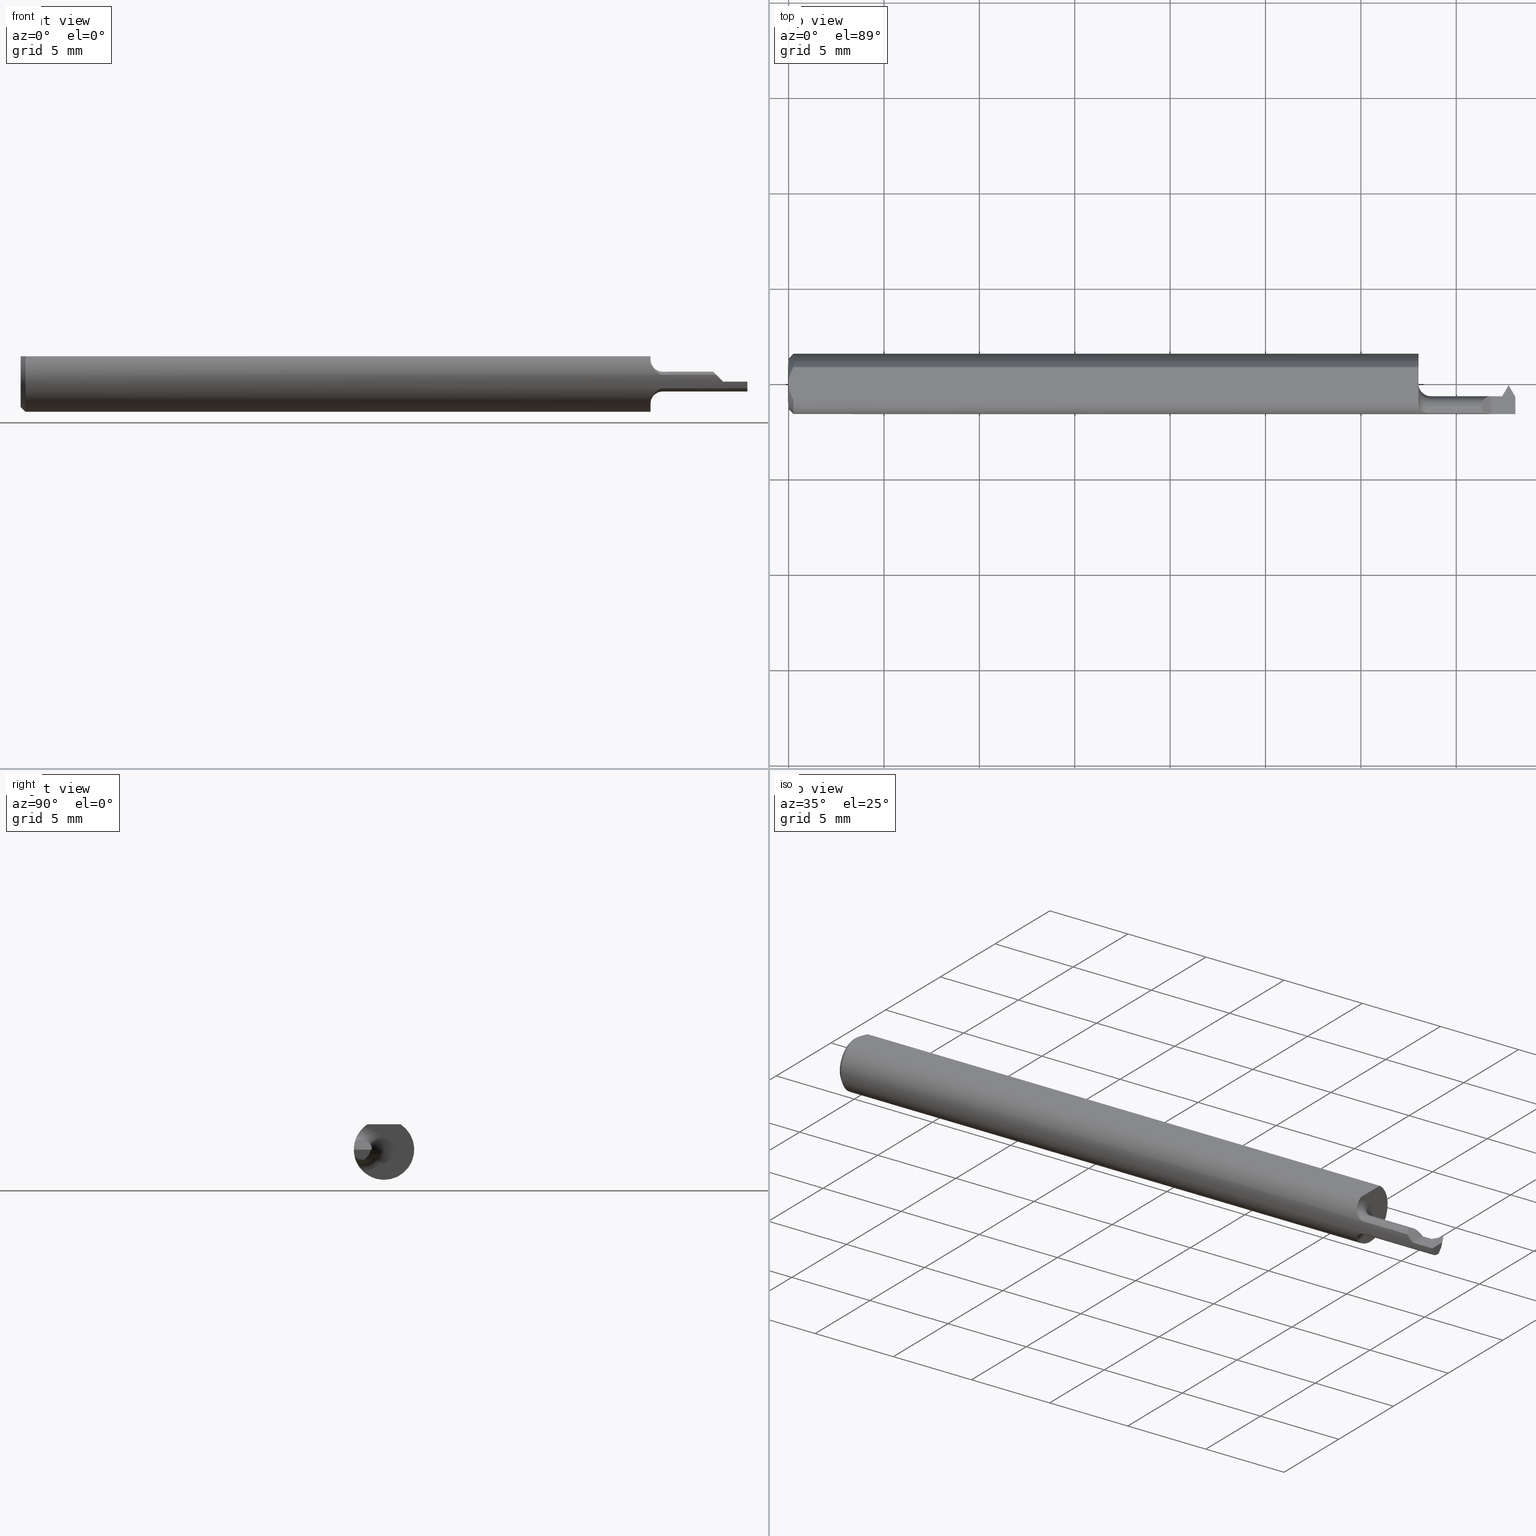
[diagram: canonical four-view strip — front | top / right | iso, engineering-drawing reading convention]
A machine part, canonical four-view strip (front | top / right | iso — engineering-drawing reading convention). The complete STEP part file that produces these views, byte-faithful:
ISO-10303-21;
HEADER;
FILE_DESCRIPTION (( 'STEP AP203' ),
    '1' );
FILE_NAME ('230019-TT060150.STEP',
    '2025-04-25T21:47:16',
    ( '' ),
    ( '' ),
    'SwSTEP 2.0',
    'SolidWorks 2024',
    '' );
FILE_SCHEMA (( 'CONFIG_CONTROL_DESIGN' ));
ENDSEC;

DATA;
#1 = DIRECTION ( 'NONE',  ( -1.000000000000000000, -0.000000000000000000, -0.000000000000000000 ) ) ;
#2 = EDGE_CURVE ( 'NONE', #551, #29, #622, .T. ) ;
#3 = ORIENTED_EDGE ( 'NONE', *, *, #259, .F. ) ;
#4 = CARTESIAN_POINT ( 'NONE',  ( -8.573957617566337510E-16, 0.005954997531773999035, 0.05234999999999997294 ) ) ;
#5 = AXIS2_PLACEMENT_3D ( 'NONE', #355, #72, #21 ) ;
#6 = FACE_OUTER_BOUND ( 'NONE', #283, .T. ) ;
#7 = VERTEX_POINT ( 'NONE', #149 ) ;
#8 = CARTESIAN_POINT ( 'NONE',  ( 1.500000000000000222, -0.2500000000000000555, 0.000000000000000000 ) ) ;
#9 = LINE ( 'NONE', #332, #424 ) ;
#10 = ORIENTED_EDGE ( 'NONE', *, *, #399, .T. ) ;
#11 = DATE_AND_TIME ( #471, #78 ) ;
#12 = LINE ( 'NONE', #527, #108 ) ;
#13 = ORIENTED_EDGE ( 'NONE', *, *, #215, .F. ) ;
#14 = B_SPLINE_CURVE_WITH_KNOTS ( 'NONE', 3,
 ( #517, #572, #69, #290, #482, #100, #709, #213 ),
 .UNSPECIFIED., .F., .F.,
 ( 4, 2, 2, 4 ),
 ( 4.183662842068042959E-06, 0.0006133011813381126186, 0.0009178599405861294185, 0.001222418699834146218 ),
 .UNSPECIFIED. ) ;
#15 = APPLICATION_PROTOCOL_DEFINITION ( 'international standard', 'config_control_design', 1994, #351 ) ;
#16 = CARTESIAN_POINT ( 'NONE',  ( 0.000000000000000000, 0.000000000000000000, 0.000000000000000000 ) ) ;
#17 = VECTOR ( 'NONE', #316, 39.37007874015748143 ) ;
#18 = VECTOR ( 'NONE', #162, 39.37007874015748854 ) ;
#19 = ORIENTED_EDGE ( 'NONE', *, *, #520, .T. ) ;
#20 = PERSON_AND_ORGANIZATION_ROLE ( 'design_supplier' ) ;
#21 = DIRECTION ( 'NONE',  ( 0.4999999999999948375, -0.8660254037844414832, 0.000000000000000000 ) ) ;
#22 = EDGE_LOOP ( 'NONE', ( #686, #450, #477, #185 ) ) ;
#23 = CC_DESIGN_DATE_AND_TIME_ASSIGNMENT ( #127, #301, ( #658 ) ) ;
#24 = EDGE_CURVE ( 'NONE', #7, #266, #655, .T. ) ;
#25 = DIRECTION ( 'NONE',  ( -1.000000000000000000, 0.000000000000000000, -0.000000000000000000 ) ) ;
#26 = ORIENTED_EDGE ( 'NONE', *, *, #627, .F. ) ;
#27 = COORDINATED_UNIVERSAL_TIME_OFFSET ( 8, 0, .BEHIND. ) ;
#28 = CARTESIAN_POINT ( 'NONE',  ( 1.470951421547187499, -0.02534999999999999060, 0.000000000000000000 ) ) ;
#29 = VERTEX_POINT ( 'NONE', #436 ) ;
#30 = CARTESIAN_POINT ( 'NONE',  ( 1.671951421547187788, -0.04584999999999988390, -0.02050000000000002168 ) ) ;
#31 = DIRECTION ( 'NONE',  ( 1.000000000000000000, -0.000000000000000000, -0.000000000000000000 ) ) ;
#32 = EDGE_CURVE ( 'NONE', #168, #276, #265, .T. ) ;
#33 = EDGE_CURVE ( 'NONE', #638, #306, #328, .T. ) ;
#34 = CARTESIAN_POINT ( 'NONE',  ( 1.324999999999999734, -0.06073604143947641809, -0.01409452979925905104 ) ) ;
#35 = DIRECTION ( 'NONE',  ( -1.000000000000000000, -0.000000000000000000, -0.000000000000000000 ) ) ;
#36 = PRODUCT_DEFINITION_SHAPE ( 'NONE', 'NONE',  #658 ) ;
#37 = CARTESIAN_POINT ( 'NONE',  ( 1.308379651799175258, -0.05768568243143071955, -0.02390912192702928513 ) ) ;
#38 = CARTESIAN_POINT ( 'NONE',  ( 0.01000000000000001582, 0.000000000000000000, 0.000000000000000000 ) ) ;
#39 = VECTOR ( 'NONE', #217, 39.37007874015748143 ) ;
#40 = SHAPE_DEFINITION_REPRESENTATION ( #36, #493 ) ;
#41 = CARTESIAN_POINT ( 'NONE',  ( 1.450000000000000178, -0.2500000000000000555, 6.123233995736799470E-18 ) ) ;
#42 = DIRECTION ( 'NONE',  ( -1.000000000000000000, -0.000000000000000000, -0.000000000000000000 ) ) ;
#43 = EDGE_CURVE ( 'NONE', #362, #551, #375, .T. ) ;
#44 = LINE ( 'NONE', #87, #192 ) ;
#45 = CARTESIAN_POINT ( 'NONE',  ( 1.300000000000000044, -0.04585000000000004350, 0.000000000000000000 ) ) ;
#46 = ORIENTED_EDGE ( 'NONE', *, *, #487, .F. ) ;
#47 = CARTESIAN_POINT ( 'NONE',  ( 0.000000000000000000, 0.000000000000000000, 0.05234999999999997294 ) ) ;
#48 = CARTESIAN_POINT ( 'NONE',  ( 1.486500000000000155, -0.003350000000000004884, 0.000000000000000000 ) ) ;
#49 = VECTOR ( 'NONE', #503, 39.37007874015748143 ) ;
#50 = CIRCLE ( 'NONE', #260, 0.02050000000000002862 ) ;
#51 = CARTESIAN_POINT ( 'NONE',  ( 1.450000000000000178, -0.02534999999999990733, 2.449293598294719480E-17 ) ) ;
#52 = LOCAL_TIME ( 14, 47, 16.00000000000000000, #628 ) ;
#53 = DIRECTION ( 'NONE',  ( 5.296882656059817778E-15, -0.6427876096865350330, -0.7660444431189816772 ) ) ;
#54 = ORIENTED_EDGE ( 'NONE', *, *, #470, .T. ) ;
#55 = ADVANCED_FACE ( 'NONE', ( #486 ), #600, .T. ) ;
#56 = DIRECTION ( 'NONE',  ( -1.224646799147359863E-16, 0.000000000000000000, -1.000000000000000000 ) ) ;
#57 = EDGE_CURVE ( 'NONE', #79, #504, #483, .T. ) ;
#58 = DIRECTION ( 'NONE',  ( 0.1993679344171976064, 0.000000000000000000, 0.9799247046208294787 ) ) ;
#59 = ORIENTED_EDGE ( 'NONE', *, *, #150, .F. ) ;
#60 = CARTESIAN_POINT ( 'NONE',  ( 0.000000000000000000, 0.000000000000000000, 0.000000000000000000 ) ) ;
#61 = CARTESIAN_POINT ( 'NONE',  ( 1.473972926476223799, -0.02738452299423695113, -0.009999999999999849287 ) ) ;
#62 = ORIENTED_EDGE ( 'NONE', *, *, #294, .F. ) ;
#63 = DIRECTION ( 'NONE',  ( 0.000000000000000000, 0.000000000000000000, -1.000000000000000000 ) ) ;
#64 = DIRECTION ( 'NONE',  ( -1.000000000000000000, -9.929577671863619690E-17, -0.000000000000000000 ) ) ;
#65 = APPROVAL_PERSON_ORGANIZATION ( #587, #494, #198 ) ;
#66 = EDGE_LOOP ( 'NONE', ( #640, #196, #234, #13, #102, #225 ) ) ;
#67 = APPLICATION_CONTEXT ( 'configuration controlled 3d designs of mechanical parts and assemblies' ) ;
#68 = COORDINATED_UNIVERSAL_TIME_OFFSET ( 8, 0, .BEHIND. ) ;
#69 = CARTESIAN_POINT ( 'NONE',  ( 1.302087078649324159, -0.05320835086854504292, 0.03322816149382799150 ) ) ;
#70 = ORIENTED_EDGE ( 'NONE', *, *, #597, .T. ) ;
#71 = CARTESIAN_POINT ( 'NONE',  ( 0.000000000000000000, 0.000000000000000000, 0.000000000000000000 ) ) ;
#72 = DIRECTION ( 'NONE',  ( -0.8486396879976035867, -0.4899623523104097989, 0.1993679344171976342 ) ) ;
#73 = ORIENTED_EDGE ( 'NONE', *, *, #565, .T. ) ;
#74 =( CONVERSION_BASED_UNIT ( 'INCH', #529 ) LENGTH_UNIT ( ) NAMED_UNIT ( #275 ) );
#75 = EDGE_CURVE ( 'NONE', #400, #684, #510, .T. ) ;
#76 = CARTESIAN_POINT ( 'NONE',  ( 1.519286842537724169, 0.04229093578683310040, -0.02050000000000002862 ) ) ;
#77 = AXIS2_PLACEMENT_3D ( 'NONE', #305, #195, #418 ) ;
#78 = LOCAL_TIME ( 14, 47, 16.00000000000000000, #244 ) ;
#79 = VERTEX_POINT ( 'NONE', #200 ) ;
#80 = DIRECTION ( 'NONE',  ( 1.000000000000000000, 0.000000000000000000, 0.000000000000000000 ) ) ;
#81 = DIRECTION ( 'NONE',  ( 0.000000000000000000, 0.000000000000000000, -1.000000000000000000 ) ) ;
#82 = EDGE_CURVE ( 'NONE', #266, #306, #95, .T. ) ;
#83 = ORIENTED_EDGE ( 'NONE', *, *, #487, .T. ) ;
#84 =( LENGTH_UNIT ( ) NAMED_UNIT ( * ) SI_UNIT ( $, .METRE. ) );
#85 = LINE ( 'NONE', #125, #368 ) ;
#86 = ORIENTED_EDGE ( 'NONE', *, *, #616, .T. ) ;
#87 = CARTESIAN_POINT ( 'NONE',  ( -3.937007874019685528E-05, -0.01620080838571287193, -0.02050000000000002168 ) ) ;
#88 = ORIENTED_EDGE ( 'NONE', *, *, #647, .T. ) ;
#89 = AXIS2_PLACEMENT_3D ( 'NONE', #685, #128, #580 ) ;
#90 = SECURITY_CLASSIFICATION ( '', '', #466 ) ;
#91 = ORIENTED_EDGE ( 'NONE', *, *, #280, .F. ) ;
#92 = CARTESIAN_POINT ( 'NONE',  ( 1.320918043451031920, -0.06073604143947645972, -0.01409452979925904237 ) ) ;
#93 = DIRECTION ( 'NONE',  ( 0.000000000000000000, -1.000000000000000000, 0.000000000000000000 ) ) ;
#94 = CARTESIAN_POINT ( 'NONE',  ( 1.486483381705665963, -0.007390262258356559977, -0.01000000000000601623 ) ) ;
#95 = LINE ( 'NONE', #594, #542 ) ;
#96 = DIRECTION ( 'NONE',  ( 0.000000000000000000, -1.000000000000000000, 0.000000000000000000 ) ) ;
#97 = DIRECTION ( 'NONE',  ( -1.000000000000000000, -0.000000000000000000, -0.000000000000000000 ) ) ;
#98 = CIRCLE ( 'NONE', #462, 0.05235000000000005621 ) ;
#99 = EDGE_CURVE ( 'NONE', #694, #396, #50, .T. ) ;
#100 = CARTESIAN_POINT ( 'NONE',  ( 1.317156662623708785, -0.06029909404253408489, 0.01606812257809505512 ) ) ;
#101 = DIRECTION ( 'NONE',  ( 1.000000000000000000, 0.000000000000000000, 0.000000000000000000 ) ) ;
#102 = ORIENTED_EDGE ( 'NONE', *, *, #99, .T. ) ;
#103 = CARTESIAN_POINT ( 'NONE',  ( 1.475386358967280653, -0.03736748372184077460, -0.02050000000000013270 ) ) ;
#104 = DIRECTION ( 'NONE',  ( 0.4999999999999926725, 0.8660254037844429265, -0.000000000000000000 ) ) ;
#105 = DIRECTION ( 'NONE',  ( -0.1143501000964258912, 0.1980601832175844790, 0.9734969021171840931 ) ) ;
#106 = DIRECTION ( 'NONE',  ( -9.929577671863619690E-17, 1.000000000000000000, 0.000000000000000000 ) ) ;
#107 = ORIENTED_EDGE ( 'NONE', *, *, #647, .F. ) ;
#108 = VECTOR ( 'NONE', #468, 39.37007874015748143 ) ;
#109 =( GEOMETRIC_REPRESENTATION_CONTEXT ( 3 ) GLOBAL_UNCERTAINTY_ASSIGNED_CONTEXT ( ( #651 ) ) GLOBAL_UNIT_ASSIGNED_CONTEXT ( ( #74, #353, #345 ) ) REPRESENTATION_CONTEXT ( 'NONE', 'WORKASPACE' ) );
#110 = CARTESIAN_POINT ( 'NONE',  ( 1.500000000000000222, -0.03080173189065360181, -0.009999999999999849287 ) ) ;
#111 = CARTESIAN_POINT ( 'NONE',  ( 1.300000000000000044, -0.02534999999999992121, 2.449293598294719480E-17 ) ) ;
#112 = VERTEX_POINT ( 'NONE', #539 ) ;
#113 = CARTESIAN_POINT ( 'NONE',  ( 1.435905470200740996, -0.06073604143947647360, 0.01409452979925886716 ) ) ;
#114 = CARTESIAN_POINT ( 'NONE',  ( 2.249639673992810223E-32, -0.06234999999999999570, 1.836970198721039302E-16 ) ) ;
#115 = ORIENTED_EDGE ( 'NONE', *, *, #186, .F. ) ;
#116 = CARTESIAN_POINT ( 'NONE',  ( 1.473739173235128819, -0.02697965050428698802, -0.008009988134017449052 ) ) ;
#117 = DIRECTION ( 'NONE',  ( -0.7985882202808554098, 0.4610651239508068433, -0.3868795754558299604 ) ) ;
#118 = ORIENTED_EDGE ( 'NONE', *, *, #335, .T. ) ;
#119 =( BOUNDED_CURVE ( )  B_SPLINE_CURVE ( 3, ( #380, #103, #277, #116 ),
 .UNSPECIFIED., .F., .T. ) 
 B_SPLINE_CURVE_WITH_KNOTS ( ( 4, 4 ),
 ( 3.342305517569140072, 4.511676116404728987 ),
 .UNSPECIFIED. ) 
 CURVE ( )  GEOMETRIC_REPRESENTATION_ITEM ( )  RATIONAL_B_SPLINE_CURVE ( ( 1.000000000000000000, 0.8892572147115580528, 0.8892572147115580528, 1.000000000000000000 ) ) 
 REPRESENTATION_ITEM ( '' )  );
#120 = TOROIDAL_SURFACE ( 'NONE', #191, 0.04550000000000003347, 0.02499999999999980016 ) ;
#121 = FACE_OUTER_BOUND ( 'NONE', #573, .T. ) ;
#122 = CC_DESIGN_SECURITY_CLASSIFICATION ( #90, ( #544 ) ) ;
#123 = EDGE_LOOP ( 'NONE', ( #606, #300, #46, #458, #279, #660 ) ) ;
#124 = PERSON_AND_ORGANIZATION_ROLE ( 'design_owner' ) ;
#125 = CARTESIAN_POINT ( 'NONE',  ( 1.475684376837079759, -0.05035398955201080690, -0.02050000000000002168 ) ) ;
#126 = ORIENTED_EDGE ( 'NONE', *, *, #645, .F. ) ;
#127 = DATE_AND_TIME ( #456, #52 ) ;
#128 = DIRECTION ( 'NONE',  ( 1.000000000000000000, 0.000000000000000000, 0.000000000000000000 ) ) ;
#129 = ORIENTED_EDGE ( 'NONE', *, *, #442, .F. ) ;
#130 = DIRECTION ( 'NONE',  ( -1.000000000000000000, -0.000000000000000000, -0.000000000000000000 ) ) ;
#131 = AXIS2_PLACEMENT_3D ( 'NONE', #16, #515, #81 ) ;
#132 = ORIENTED_EDGE ( 'NONE', *, *, #445, .T. ) ;
#133 = ORIENTED_EDGE ( 'NONE', *, *, #150, .T. ) ;
#134 = APPROVAL_ROLE ( '' ) ;
#135 = FACE_OUTER_BOUND ( 'NONE', #222, .T. ) ;
#136 = ORIENTED_EDGE ( 'NONE', *, *, #229, .T. ) ;
#137 = DIRECTION ( 'NONE',  ( 0.8486396879976048080, -0.4899623523104075784, 0.1993679344171975509 ) ) ;
#138 = ORIENTED_EDGE ( 'NONE', *, *, #489, .F. ) ;
#139 = CARTESIAN_POINT ( 'NONE',  ( 1.300000000000000044, -0.03386738844375225543, 0.05234999999999997294 ) ) ;
#140 = DIRECTION ( 'NONE',  ( 0.000000000000000000, 0.3768974211598614676, 0.9262550048032377470 ) ) ;
#141 = VECTOR ( 'NONE', #506, 39.37007874015748143 ) ;
#142 = VECTOR ( 'NONE', #250, 39.37007874015748854 ) ;
#143 = PERSON ( 'UNSPECIFIED', 'UNSPECIFIED', 'UNSPECIFIED', ('UNSPECIFIED'), ('UNSPECIFIED'), ('UNSPECIFIED') ) ;
#144 = DIRECTION ( 'NONE',  ( 1.000000000000000000, -0.000000000000000000, -0.000000000000000000 ) ) ;
#145 = DIRECTION ( 'NONE',  ( -1.000000000000000000, -0.000000000000000000, -0.000000000000000000 ) ) ;
#146 = APPROVAL_DATE_TIME ( #535, #494 ) ;
#147 = CC_DESIGN_PERSON_AND_ORGANIZATION_ASSIGNMENT ( #636, #20, ( #544 ) ) ;
#148 = DIRECTION ( 'NONE',  ( 0.000000000000000000, 1.000000000000000000, -4.075592278182146697E-17 ) ) ;
#149 = CARTESIAN_POINT ( 'NONE',  ( 1.300000000000000044, -0.04274258451472189718, -0.04539376575039635875 ) ) ;
#150 = EDGE_CURVE ( 'NONE', #29, #7, #643, .T. ) ;
#151 = DIRECTION ( 'NONE',  ( -9.929577671863619690E-17, 1.000000000000000000, 0.000000000000000000 ) ) ;
#152 = CARTESIAN_POINT ( 'NONE',  ( 1.486000000000000210, -0.006553020584689371250, -0.009999999999999849287 ) ) ;
#153 = VECTOR ( 'NONE', #53, 39.37007874015748854 ) ;
#154 = AXIS2_PLACEMENT_3D ( 'NONE', #71, #579, #80 ) ;
#155 = DIRECTION ( 'NONE',  ( 0.000000000000000000, -0.6427876096865350330, -0.7660444431189816772 ) ) ;
#156 = LINE ( 'NONE', #381, #270 ) ;
#157 = ORIENTED_EDGE ( 'NONE', *, *, #578, .T. ) ;
#158 = CARTESIAN_POINT ( 'NONE',  ( 1.470389556322883484, -0.02534999999999989692, -0.002761655807752817771 ) ) ;
#159 = DIRECTION ( 'NONE',  ( 0.000000000000000000, -1.000000000000000000, 0.000000000000000000 ) ) ;
#160 = ADVANCED_FACE ( 'NONE', ( #426 ), #120, .F. ) ;
#161 = ORIENTED_EDGE ( 'NONE', *, *, #667, .F. ) ;
#162 = DIRECTION ( 'NONE',  ( -0.1143501000964258912, 0.1980601832175844790, 0.9734969021171840931 ) ) ;
#163 = LINE ( 'NONE', #388, #568 ) ;
#164 = ORIENTED_EDGE ( 'NONE', *, *, #342, .T. ) ;
#165 = AXIS2_PLACEMENT_3D ( 'NONE', #263, #696, #700 ) ;
#166 = CARTESIAN_POINT ( 'NONE',  ( 1.500000000000000222, -0.06073604143947643197, -0.01409452979925878389 ) ) ;
#167 = DIRECTION ( 'NONE',  ( 1.000000000000000000, 9.929577671863619690E-17, 0.000000000000000000 ) ) ;
#168 = VERTEX_POINT ( 'NONE', #642 ) ;
#169 = CC_DESIGN_PERSON_AND_ORGANIZATION_ASSIGNMENT ( #584, #124, ( #648 ) ) ;
#170 = CARTESIAN_POINT ( 'NONE',  ( 0.001063697276021587047, 0.01189177144351697378, 0.05234999999999997988 ) ) ;
#171 = CARTESIAN_POINT ( 'NONE',  ( 1.470951421547187499, -0.02534999999999999060, 0.000000000000000000 ) ) ;
#172 = ORIENTED_EDGE ( 'NONE', *, *, #342, .F. ) ;
#173 = APPROVAL_DATE_TIME ( #402, #254 ) ;
#174 = DIRECTION ( 'NONE',  ( 0.000000000000000000, -1.000000000000000000, 0.000000000000000000 ) ) ;
#175 = ORIENTED_EDGE ( 'NONE', *, *, #237, .T. ) ;
#176 = APPROVAL_STATUS ( 'not_yet_approved' ) ;
#177 = CIRCLE ( 'NONE', #703, 0.02050000000000022291 ) ;
#178 = CARTESIAN_POINT ( 'NONE',  ( 1.445250564478592015, -0.06235000000000000264, 0.004749435521408090083 ) ) ;
#179 = VECTOR ( 'NONE', #304, 39.37007874015748143 ) ;
#180 = ORIENTED_EDGE ( 'NONE', *, *, #407, .T. ) ;
#181 = CC_DESIGN_PERSON_AND_ORGANIZATION_ASSIGNMENT ( #526, #359, ( #90 ) ) ;
#182 = PERSON_AND_ORGANIZATION_ROLE ( 'creator' ) ;
#183 = EDGE_CURVE ( 'NONE', #615, #531, #156, .T. ) ;
#184 = PLANE ( 'NONE',  #77 ) ;
#185 = ORIENTED_EDGE ( 'NONE', *, *, #442, .T. ) ;
#186 = EDGE_CURVE ( 'NONE', #419, #276, #312, .T. ) ;
#187 = CARTESIAN_POINT ( 'NONE',  ( 0.000000000000000000, 0.000000000000000000, 0.000000000000000000 ) ) ;
#188 = VERTEX_POINT ( 'NONE', #251 ) ;
#189 = PERSON_AND_ORGANIZATION ( #143, #557 ) ;
#190 = CARTESIAN_POINT ( 'NONE',  ( 0.007163450771350545095, -0.02864528976618618133, 0.05234999999999997294 ) ) ;
#191 = AXIS2_PLACEMENT_3D ( 'NONE', #710, #705, #214 ) ;
#192 = VECTOR ( 'NONE', #144, 39.37007874015748143 ) ;
#193 = ORIENTED_EDGE ( 'NONE', *, *, #209, .F. ) ;
#194 = ORIENTED_EDGE ( 'NONE', *, *, #24, .T. ) ;
#195 = DIRECTION ( 'NONE',  ( 0.000000000000000000, -0.9271838545667896447, 0.3746065934159064081 ) ) ;
#196 = ORIENTED_EDGE ( 'NONE', *, *, #183, .T. ) ;
#197 = B_SPLINE_CURVE_WITH_KNOTS ( 'NONE', 3,
 ( #47, #4, #170, #394, #223, #501 ),
 .UNSPECIFIED., .F., .F.,
 ( 4, 2, 4 ),
 ( 0.003093386807937201135, 0.003544501666246021275, 0.003995616524554840981 ),
 .UNSPECIFIED. ) ;
#198 = APPROVAL_ROLE ( '' ) ;
#199 = CARTESIAN_POINT ( 'NONE',  ( 1.450000000000000178, -0.2500000000000000555, 6.123233995736799470E-18 ) ) ;
#200 = CARTESIAN_POINT ( 'NONE',  ( 1.472798294077828807, -0.02534999999999990733, 0.000000000000000000 ) ) ;
#201 = DIRECTION ( 'NONE',  ( -0.7071067811865519026, 0.000000000000000000, 0.7071067811865430208 ) ) ;
#202 = CARTESIAN_POINT ( 'NONE',  ( 1.500000000000000222, 0.000000000000000000, 0.000000000000000000 ) ) ;
#203 = VECTOR ( 'NONE', #31, 39.37007874015748143 ) ;
#204 = AXIS2_PLACEMENT_3D ( 'NONE', #8, #56, #508 ) ;
#205 = CARTESIAN_POINT ( 'NONE',  ( 1.545688868235868485, -0.1187477191428593232, -0.02050000000000001821 ) ) ;
#206 = EDGE_CURVE ( 'NONE', #400, #638, #646, .T. ) ;
#207 = B_SPLINE_CURVE_WITH_KNOTS ( 'NONE', 3,
 ( #688, #190, #360, #588, #476, #693 ),
 .UNSPECIFIED., .F., .F.,
 ( 4, 2, 4 ),
 ( 0.002189598257423869179, 0.002641492532680535157, 0.003093386807937201135 ),
 .UNSPECIFIED. ) ;
#208 = EDGE_LOOP ( 'NONE', ( #115, #619, #632, #446 ) ) ;
#209 = EDGE_CURVE ( 'NONE', #684, #400, #98, .T. ) ;
#210 = CARTESIAN_POINT ( 'NONE',  ( 1.485500000000000265, -0.003350000000000004884, 0.000000000000000000 ) ) ;
#211 = CARTESIAN_POINT ( 'NONE',  ( 0.000000000000000000, -0.03386738844375224849, 0.05234999999999997294 ) ) ;
#212 = ORIENTED_EDGE ( 'NONE', *, *, #597, .F. ) ;
#213 = CARTESIAN_POINT ( 'NONE',  ( 1.324999999999999734, -0.06073604143947641809, 0.01409452979925905104 ) ) ;
#214 = DIRECTION ( 'NONE',  ( 9.929577671863619690E-17, -1.000000000000000000, 0.000000000000000000 ) ) ;
#215 = EDGE_CURVE ( 'NONE', #694, #112, #532, .T. ) ;
#216 = CONICAL_SURFACE ( 'NONE', #131, 0.05235000000000005621, 0.7853981633974447263 ) ;
#217 = DIRECTION ( 'NONE',  ( 1.000000000000000000, 9.929577671863619690E-17, 0.000000000000000000 ) ) ;
#218 = ADVANCED_FACE ( 'NONE', ( #6 ), #448, .F. ) ;
#219 = DIRECTION ( 'NONE',  ( 0.1120836188532904620, 0.000000000000000000, -0.9936987784961548442 ) ) ;
#220 = PLANE ( 'NONE',  #204 ) ;
#221 = PLANE ( 'NONE',  #461 ) ;
#222 = EDGE_LOOP ( 'NONE', ( #246, #681, #492, #561 ) ) ;
#223 = CARTESIAN_POINT ( 'NONE',  ( 0.007185421074056362600, 0.02868573718286564905, 0.05234999999999997294 ) ) ;
#224 = CARTESIAN_POINT ( 'NONE',  ( 1.469321771042962244, -0.02697965050422519370, -0.008009988134030886220 ) ) ;
#225 = ORIENTED_EDGE ( 'NONE', *, *, #549, .T. ) ;
#226 = VECTOR ( 'NONE', #247, 39.37007874015748854 ) ;
#227 = APPROVAL_PERSON_ORGANIZATION ( #674, #254, #134 ) ;
#228 = CARTESIAN_POINT ( 'NONE',  ( 1.470951421547187499, -0.02534999999999999060, 0.000000000000000000 ) ) ;
#229 = EDGE_CURVE ( 'NONE', #589, #236, #509, .T. ) ;
#230 = CARTESIAN_POINT ( 'NONE',  ( 1.500000000000000222, 0.000000000000000000, 0.000000000000000000 ) ) ;
#231 = ORIENTED_EDGE ( 'NONE', *, *, #627, .T. ) ;
#232 = CARTESIAN_POINT ( 'NONE',  ( 1.531535333950200473, -0.3079965118901499266, -0.4632393879296953232 ) ) ;
#233 = DIRECTION ( 'NONE',  ( 0.9934405138748578779, 0.02279774325662061590, 0.1120544880603347310 ) ) ;
#234 = ORIENTED_EDGE ( 'NONE', *, *, #256, .T. ) ;
#235 = CARTESIAN_POINT ( 'NONE',  ( 0.000000000000000000, 0.000000000000000000, -0.05235000000000005621 ) ) ;
#236 = VERTEX_POINT ( 'NONE', #224 ) ;
#237 = EDGE_CURVE ( 'NONE', #507, #252, #453, .T. ) ;
#238 = APPROVAL_ROLE ( '' ) ;
#239 = CARTESIAN_POINT ( 'NONE',  ( 1.500000000000000222, -0.04584999999999988390, -0.02050000000000002168 ) ) ;
#240 = ADVANCED_FACE ( 'NONE', ( #621 ), #221, .F. ) ;
#241 = ORIENTED_EDGE ( 'NONE', *, *, #445, .F. ) ;
#242 = FACE_OUTER_BOUND ( 'NONE', #22, .T. ) ;
#243 = VERTEX_POINT ( 'NONE', #675 ) ;
#244 = COORDINATED_UNIVERSAL_TIME_OFFSET ( 8, 0, .BEHIND. ) ;
#245 = DIRECTION ( 'NONE',  ( -0.000000000000000000, 0.000000000000000000, 1.000000000000000000 ) ) ;
#246 = ORIENTED_EDGE ( 'NONE', *, *, #357, .F. ) ;
#247 = DIRECTION ( 'NONE',  ( 0.1955200734030764775, 0.1955200734030850540, 0.9610118635026873024 ) ) ;
#248 = AXIS2_PLACEMENT_3D ( 'NONE', #187, #130, #629 ) ;
#249 = VERTEX_POINT ( 'NONE', #715 ) ;
#250 = DIRECTION ( 'NONE',  ( 5.282882199404208823E-15, 0.6427876096865350330, 0.7660444431189816772 ) ) ;
#251 = CARTESIAN_POINT ( 'NONE',  ( 1.475306449763416294, -0.03388533903510464879, -0.02050000000000009454 ) ) ;
#252 = VERTEX_POINT ( 'NONE', #171 ) ;
#253 = CARTESIAN_POINT ( 'NONE',  ( 1.310942042317410294, -0.05877762567767836482, -0.02095937121485504789 ) ) ;
#254 = APPROVAL ( #397, 'UNSPECIFIED' ) ;
#255 = DIRECTION ( 'NONE',  ( 0.000000000000000000, 0.000000000000000000, -1.000000000000000000 ) ) ;
#256 = EDGE_CURVE ( 'NONE', #531, #112, #614, .T. ) ;
#257 = DIRECTION ( 'NONE',  ( -0.7071067811865431318, 0.000000000000000000, -0.7071067811865520136 ) ) ;
#258 = DIRECTION ( 'NONE',  ( 1.000000000000000000, 0.000000000000000000, 0.000000000000000000 ) ) ;
#259 = EDGE_CURVE ( 'NONE', #112, #417, #327, .T. ) ;
#260 = AXIS2_PLACEMENT_3D ( 'NONE', #603, #101, #322 ) ;
#261 = AXIS2_PLACEMENT_3D ( 'NONE', #364, #311, #536 ) ;
#262 = DIRECTION ( 'NONE',  ( -0.000000000000000000, 4.075592278182146697E-17, 1.000000000000000000 ) ) ;
#263 = CARTESIAN_POINT ( 'NONE',  ( 1.300000000000000044, 0.000000000000000000, 0.000000000000000000 ) ) ;
#264 = LINE ( 'NONE', #30, #634 ) ;
#265 = LINE ( 'NONE', #490, #297 ) ;
#266 = VERTEX_POINT ( 'NONE', #398 ) ;
#267 = CARTESIAN_POINT ( 'NONE',  ( -3.937007874019685528E-05, -0.007390262258351511931, -0.01000000000000000021 ) ) ;
#268 = CYLINDRICAL_SURFACE ( 'NONE', #554, 0.02050000000000012923 ) ;
#269 = EDGE_LOOP ( 'NONE', ( #172, #329, #525, #10, #382, #241, #528, #393, #586, #325, #534, #547, #389 ) ) ;
#270 = VECTOR ( 'NONE', #140, 39.37007874015748143 ) ;
#271 = AXIS2_PLACEMENT_3D ( 'NONE', #60, #281, #63 ) ;
#272 = DESIGN_CONTEXT ( 'detailed design', #351, 'design' ) ;
#273 = LINE ( 'NONE', #110, #320 ) ;
#274 = CARTESIAN_POINT ( 'NONE',  ( 1.398475710773593672, -0.06073604143947648748, -0.01409452979925883073 ) ) ;
#275 = DIMENSIONAL_EXPONENTS ( 1.000000000000000000, 0.000000000000000000, 0.000000000000000000, 0.000000000000000000, 0.000000000000000000, 0.000000000000000000, 0.000000000000000000 ) ;
#276 = VERTEX_POINT ( 'NONE', #339 ) ;
#277 = CARTESIAN_POINT ( 'NONE',  ( 1.474695953239305135, -0.03029403366202837108, -0.01581818553757461873 ) ) ;
#278 = CARTESIAN_POINT ( 'NONE',  ( 0.01000000000000001582, -0.03386738844375224849, 0.05234999999999997294 ) ) ;
#279 = ORIENTED_EDGE ( 'NONE', *, *, #500, .T. ) ;
#280 = EDGE_CURVE ( 'NONE', #504, #168, #392, .T. ) ;
#281 = DIRECTION ( 'NONE',  ( 1.000000000000000000, 0.000000000000000000, 0.000000000000000000 ) ) ;
#282 = CARTESIAN_POINT ( 'NONE',  ( 1.299999999999999156, -0.02697965050423946007, -0.008009988134064470466 ) ) ;
#283 = EDGE_LOOP ( 'NONE', ( #676, #411 ) ) ;
#284 = AXIS2_PLACEMENT_3D ( 'NONE', #202, #145, #596 ) ;
#285 = LOCAL_TIME ( 14, 47, 16.00000000000000000, #68 ) ;
#286 = DIRECTION ( 'NONE',  ( 0.000000000000000000, 0.000000000000000000, 1.000000000000000000 ) ) ;
#287 = CARTESIAN_POINT ( 'NONE',  ( 0.01000000000000001582, 0.03386738844375224849, 0.05234999999999997294 ) ) ;
#288 = EDGE_LOOP ( 'NONE', ( #670, #663 ) ) ;
#289 = PERSON_AND_ORGANIZATION ( #143, #557 ) ;
#290 = CARTESIAN_POINT ( 'NONE',  ( 1.308393315188583150, -0.05769563112685622414, 0.02388861346910425842 ) ) ;
#291 = ADVANCED_FACE ( 'NONE', ( #121 ), #550, .T. ) ;
#292 = ORIENTED_EDGE ( 'NONE', *, *, #33, .F. ) ;
#293 =( BOUNDED_CURVE ( )  B_SPLINE_CURVE ( 3, ( #113, #665, #562, #51 ),
 .UNSPECIFIED., .F., .T. ) 
 B_SPLINE_CURVE_WITH_KNOTS ( ( 4, 4 ),
 ( 5.470482129107354652, 7.853981633974482790 ),
 .UNSPECIFIED. ) 
 CURVE ( )  GEOMETRIC_REPRESENTATION_ITEM ( )  RATIONAL_B_SPLINE_CURVE ( ( 1.000000000000000000, 0.5800232588578069226, 0.5800232588578069226, 1.000000000000000000 ) ) 
 REPRESENTATION_ITEM ( '' )  );
#294 = EDGE_CURVE ( 'NONE', #168, #531, #444, .T. ) ;
#295 = CARTESIAN_POINT ( 'NONE',  ( 1.450000000000000178, -0.06235000000000005121, 6.123233995736799470E-18 ) ) ;
#296 = ORIENTED_EDGE ( 'NONE', *, *, #334, .F. ) ;
#297 = VECTOR ( 'NONE', #318, 39.37007874015748143 ) ;
#298 = APPROVAL_DATE_TIME ( #522, #708 ) ;
#299 = CARTESIAN_POINT ( 'NONE',  ( 1.485496473143826934, -0.002492545943572309786, 0.002122273262472723718 ) ) ;
#300 = ORIENTED_EDGE ( 'NONE', *, *, #541, .T. ) ;
#301 = DATE_TIME_ROLE ( 'creation_date' ) ;
#302 = PLANE ( 'NONE',  #412 ) ;
#303 = ORIENTED_EDGE ( 'NONE', *, *, #43, .T. ) ;
#304 = DIRECTION ( 'NONE',  ( -0.1073577180708316092, 0.5233600211180030604, 0.8453216007331099124 ) ) ;
#305 = CARTESIAN_POINT ( 'NONE',  ( -3.937007874019685528E-05, -0.003350000000000004884, 2.449293598294714858E-17 ) ) ;
#306 = VERTEX_POINT ( 'NONE', #287 ) ;
#307 = PLANE ( 'NONE',  #401 ) ;
#308 = LOCAL_TIME ( 14, 47, 16.00000000000000000, #427 ) ;
#309 = EDGE_LOOP ( 'NONE', ( #711, #340, #558, #161 ) ) ;
#310 = ORIENTED_EDGE ( 'NONE', *, *, #229, .F. ) ;
#311 = DIRECTION ( 'NONE',  ( 4.303144622114695547E-14, -0.9799247046208295897, 0.1993679344171976342 ) ) ;
#312 = LINE ( 'NONE', #324, #203 ) ;
#313 = ADVANCED_FACE ( 'NONE', ( #567 ), #268, .T. ) ;
#314 = EDGE_CURVE ( 'NONE', #362, #638, #702, .T. ) ;
#315 = CARTESIAN_POINT ( 'NONE',  ( 1.299999999999999600, -0.04862953753773300442, -0.03985063481687043524 ) ) ;
#316 = DIRECTION ( 'NONE',  ( 1.000000000000000000, 0.000000000000000000, 0.000000000000000000 ) ) ;
#317 = LINE ( 'NONE', #41, #354 ) ;
#318 = DIRECTION ( 'NONE',  ( -0.001540819590689057042, -0.3746061487342010610, -0.9271827539409469576 ) ) ;
#319 = VECTOR ( 'NONE', #346, 39.37007874015748854 ) ;
#320 = VECTOR ( 'NONE', #713, 39.37007874015748854 ) ;
#321 = CARTESIAN_POINT ( 'NONE',  ( 1.671951421547187788, -0.04584999999999988390, -0.02050000000000002168 ) ) ;
#322 = DIRECTION ( 'NONE',  ( 0.000000000000000000, 0.000000000000000000, 1.000000000000000000 ) ) ;
#323 = CARTESIAN_POINT ( 'NONE',  ( 1.398475710773593672, -0.06073604143947648748, 0.01409452979925883073 ) ) ;
#324 = CARTESIAN_POINT ( 'NONE',  ( -3.937007874019685528E-05, -0.007390262258351511931, -0.01000000000000000021 ) ) ;
#325 = ORIENTED_EDGE ( 'NONE', *, *, #33, .T. ) ;
#326 = DIRECTION ( 'NONE',  ( 0.4999999999999925060, 0.8660254037844429265, 0.000000000000000000 ) ) ;
#327 = LINE ( 'NONE', #114, #666 ) ;
#328 = CIRCLE ( 'NONE', #601, 0.06235000000000000264 ) ;
#329 = ORIENTED_EDGE ( 'NONE', *, *, #215, .T. ) ;
#330 = AXIS2_PLACEMENT_3D ( 'NONE', #720, #286, #447 ) ;
#331 = FACE_OUTER_BOUND ( 'NONE', #577, .T. ) ;
#332 = CARTESIAN_POINT ( 'NONE',  ( 1.300000000000000044, 0.06234999999999996795, 0.05234999999999997294 ) ) ;
#333 = EDGE_LOOP ( 'NONE', ( #132, #54, #19, #59 ) ) ;
#334 = EDGE_CURVE ( 'NONE', #551, #266, #9, .T. ) ;
#335 = EDGE_CURVE ( 'NONE', #419, #454, #457, .T. ) ;
#336 = CARTESIAN_POINT ( 'NONE',  ( 1.300000000000000044, -0.04585000000000004350, 0.000000000000000000 ) ) ;
#337 = ORIENTED_EDGE ( 'NONE', *, *, #334, .T. ) ;
#338 = CARTESIAN_POINT ( 'NONE',  ( 1.473739173235128819, -0.02697965050428698802, -0.008009988134017449052 ) ) ;
#339 = CARTESIAN_POINT ( 'NONE',  ( 1.486483381705664852, -0.007390262258351558769, -0.01000000000000002970 ) ) ;
#340 = ORIENTED_EDGE ( 'NONE', *, *, #367, .F. ) ;
#341 = AXIS2_PLACEMENT_3D ( 'NONE', #152, #659, #432 ) ;
#342 = EDGE_CURVE ( 'NONE', #694, #350, #563, .T. ) ;
#343 = CARTESIAN_POINT ( 'NONE',  ( 1.500000000000000222, 0.000000000000000000, 0.000000000000000000 ) ) ;
#344 = VERTEX_POINT ( 'NONE', #717 ) ;
#345 =( NAMED_UNIT ( * ) SI_UNIT ( $, .STERADIAN. ) SOLID_ANGLE_UNIT ( ) );
#346 = DIRECTION ( 'NONE',  ( -0.4999999999999925060, -0.8660254037844429265, 3.001275745718317789E-17 ) ) ;
#347 = EDGE_LOOP ( 'NONE', ( #91, #591, #564, #365, #138, #3, #635, #62 ) ) ;
#348 = MECHANICAL_CONTEXT ( 'NONE', #67, 'mechanical' ) ;
#349 = CARTESIAN_POINT ( 'NONE',  ( 1.435905470200740996, -0.06073604143947647360, 0.01409452979925886716 ) ) ;
#350 = VERTEX_POINT ( 'NONE', #664 ) ;
#351 = APPLICATION_CONTEXT ( 'configuration controlled 3d designs of mechanical parts and assemblies' ) ;
#352 = VECTOR ( 'NONE', #395, 39.37007874015748854 ) ;
#353 =( NAMED_UNIT ( * ) PLANE_ANGLE_UNIT ( ) SI_UNIT ( $, .RADIAN. ) );
#354 = VECTOR ( 'NONE', #543, 39.37007874015748143 ) ;
#355 = CARTESIAN_POINT ( 'NONE',  ( 1.486500000000000155, -0.003350000000000004884, 0.000000000000000000 ) ) ;
#356 = ORIENTED_EDGE ( 'NONE', *, *, #500, .F. ) ;
#357 = EDGE_CURVE ( 'NONE', #276, #615, #163, .T. ) ;
#358 = ORIENTED_EDGE ( 'NONE', *, *, #399, .F. ) ;
#359 = PERSON_AND_ORGANIZATION_ROLE ( 'classification_officer' ) ;
#360 = CARTESIAN_POINT ( 'NONE',  ( 0.004679365186781183836, -0.02325953974079657954, 0.05234999999999997988 ) ) ;
#361 = EDGE_LOOP ( 'NONE', ( #416, #623, #514, #406 ) ) ;
#362 = VERTEX_POINT ( 'NONE', #278 ) ;
#363 = CALENDAR_DATE ( 2025, 25, 4 ) ;
#364 = CARTESIAN_POINT ( 'NONE',  ( 1.472798294077828807, -0.02534999999999990733, 0.000000000000000000 ) ) ;
#365 = ORIENTED_EDGE ( 'NONE', *, *, #237, .F. ) ;
#366 = DIRECTION ( 'NONE',  ( 1.000000000000000000, 9.929577671863619690E-17, 0.000000000000000000 ) ) ;
#367 = EDGE_CURVE ( 'NONE', #499, #188, #85, .T. ) ;
#368 = VECTOR ( 'NONE', #683, 39.37007874015748854 ) ;
#369 = CC_DESIGN_APPROVAL ( #708, ( #658 ) ) ;
#370 = DIRECTION ( 'NONE',  ( 0.7071067811865499042, 0.000000000000000000, -0.7071067811865450192 ) ) ;
#371 = ADVANCED_FACE ( 'NONE', ( #242 ), #216, .T. ) ;
#372 = DIRECTION ( 'NONE',  ( -0.4999999999999982792, 0.8660254037844394848, -3.001275745718296219E-17 ) ) ;
#373 = DIRECTION ( 'NONE',  ( 1.000000000000000000, 9.929577671863619690E-17, 0.000000000000000000 ) ) ;
#374 = CARTESIAN_POINT ( 'NONE',  ( 1.475581018059173299, -0.04585000000000002962, -0.02050000000000007719 ) ) ;
#375 = LINE ( 'NONE', #211, #17 ) ;
#376 = LINE ( 'NONE', #94, #142 ) ;
#377 = CARTESIAN_POINT ( 'NONE',  ( 1.485500000000000265, -0.003350000000000004884, 0.000000000000000000 ) ) ;
#378 = VECTOR ( 'NONE', #174, 39.37007874015748143 ) ;
#379 = LOCAL_TIME ( 14, 47, 16.00000000000000000, #27 ) ;
#380 = CARTESIAN_POINT ( 'NONE',  ( 1.475581018059173299, -0.04585000000000002962, -0.02050000000000007719 ) ) ;
#381 = CARTESIAN_POINT ( 'NONE',  ( 1.500000000000000222, -0.02293526333106358367, 0.009332464125185995635 ) ) ;
#382 = ORIENTED_EDGE ( 'NONE', *, *, #578, .F. ) ;
#383 = LINE ( 'NONE', #607, #451 ) ;
#384 = DIRECTION ( 'NONE',  ( 0.000000000000000000, 0.000000000000000000, -1.000000000000000000 ) ) ;
#385 = ORIENTED_EDGE ( 'NONE', *, *, #57, .T. ) ;
#386 = EDGE_CURVE ( 'NONE', #252, #79, #12, .T. ) ;
#387 = ADVANCED_FACE ( 'NONE', ( #464 ), #184, .F. ) ;
#388 = CARTESIAN_POINT ( 'NONE',  ( 1.486000000000000210, -0.006553020584689371250, -0.009999999999999849287 ) ) ;
#389 = ORIENTED_EDGE ( 'NONE', *, *, #520, .F. ) ;
#390 = ADVANCED_FACE ( 'NONE', ( #639 ), #530, .T. ) ;
#391 = FACE_OUTER_BOUND ( 'NONE', #609, .T. ) ;
#392 = LINE ( 'NONE', #668, #141 ) ;
#393 = ORIENTED_EDGE ( 'NONE', *, *, #43, .F. ) ;
#394 = CARTESIAN_POINT ( 'NONE',  ( 0.004671770759546950945, 0.02323517832780109052, 0.05234999999999998682 ) ) ;
#395 = DIRECTION ( 'NONE',  ( 0.4999999999999948375, -0.8660254037844414832, 0.000000000000000000 ) ) ;
#396 = VERTEX_POINT ( 'NONE', #239 ) ;
#397 = APPROVAL_STATUS ( 'not_yet_approved' ) ;
#398 = CARTESIAN_POINT ( 'NONE',  ( 1.300000000000000044, 0.03386738844375224849, 0.05234999999999997294 ) ) ;
#399 = EDGE_CURVE ( 'NONE', #417, #344, #414, .T. ) ;
#400 = VERTEX_POINT ( 'NONE', #235 ) ;
#401 = AXIS2_PLACEMENT_3D ( 'NONE', #199, #257, #201 ) ;
#402 = DATE_AND_TIME ( #677, #285 ) ;
#403 = PLANE ( 'NONE',  #89 ) ;
#404 = ORIENTED_EDGE ( 'NONE', *, *, #576, .T. ) ;
#405 = CARTESIAN_POINT ( 'NONE',  ( 1.440531964389071051, -0.06180967512810751213, 0.009468035610929069132 ) ) ;
#406 = ORIENTED_EDGE ( 'NONE', *, *, #541, .F. ) ;
#407 = EDGE_CURVE ( 'NONE', #236, #252, #459, .T. ) ;
#408 = CALENDAR_DATE ( 2025, 25, 4 ) ;
#409 = DIRECTION ( 'NONE',  ( -0.001540819590690035643, 0.3746061487342010610, 0.9271827539409469576 ) ) ;
#410 = ADVANCED_FACE ( 'NONE', ( #415 ), #403, .F. ) ;
#411 = ORIENTED_EDGE ( 'NONE', *, *, #407, .F. ) ;
#412 = AXIS2_PLACEMENT_3D ( 'NONE', #343, #25, #245 ) ;
#413 = PERSON_AND_ORGANIZATION_ROLE ( 'creator' ) ;
#414 =( BOUNDED_CURVE ( )  B_SPLINE_CURVE ( 3, ( #295, #178, #405, #349 ),
 .UNSPECIFIED., .F., .T. ) 
 B_SPLINE_CURVE_WITH_KNOTS ( ( 4, 4 ),
 ( 4.712388980384689674, 4.940414924607591907 ),
 .UNSPECIFIED. ) 
 CURVE ( )  GEOMETRIC_REPRESENTATION_ITEM ( )  RATIONAL_B_SPLINE_CURVE ( ( 1.000000000000000000, 0.9956717057219213185, 0.9956717057219213185, 1.000000000000000000 ) ) 
 REPRESENTATION_ITEM ( '' )  );
#415 = FACE_OUTER_BOUND ( 'NONE', #288, .T. ) ;
#416 = ORIENTED_EDGE ( 'NONE', *, *, #335, .F. ) ;
#417 = VERTEX_POINT ( 'NONE', #678 ) ;
#418 = DIRECTION ( 'NONE',  ( 0.000000000000000000, -0.3746065934159064081, -0.9271838545667896447 ) ) ;
#419 = VERTEX_POINT ( 'NONE', #625 ) ;
#420 = EDGE_CURVE ( 'NONE', #454, #188, #523, .T. ) ;
#421 = FACE_OUTER_BOUND ( 'NONE', #518, .T. ) ;
#422 = DIRECTION ( 'NONE',  ( -1.000000000000000000, -9.929577671863619690E-17, -0.000000000000000000 ) ) ;
#423 = EDGE_CURVE ( 'NONE', #419, #504, #575, .T. ) ;
#424 = VECTOR ( 'NONE', #106, 39.37007874015748143 ) ;
#425 = DIRECTION ( 'NONE',  ( -1.000000000000000000, -0.000000000000000000, -0.000000000000000000 ) ) ;
#426 = FACE_OUTER_BOUND ( 'NONE', #333, .T. ) ;
#427 = COORDINATED_UNIVERSAL_TIME_OFFSET ( 8, 0, .BEHIND. ) ;
#428 = CARTESIAN_POINT ( 'NONE',  ( 1.500000000000000222, -0.02673268590218017687, 0.000000000000000000 ) ) ;
#429 = CARTESIAN_POINT ( 'NONE',  ( 1.300000000000000044, 0.000000000000000000, 0.000000000000000000 ) ) ;
#430 = CC_DESIGN_PERSON_AND_ORGANIZATION_ASSIGNMENT ( #289, #413, ( #544 ) ) ;
#431 = FACE_OUTER_BOUND ( 'NONE', #626, .T. ) ;
#432 = DIRECTION ( 'NONE',  ( -0.4999999999999982792, 0.8660254037844394848, 0.000000000000000000 ) ) ;
#433 = ADVANCED_FACE ( 'NONE', ( #135 ), #631, .F. ) ;
#434 = ORIENTED_EDGE ( 'NONE', *, *, #99, .F. ) ;
#435 = CARTESIAN_POINT ( 'NONE',  ( 1.485516618294334679, -0.01620080838571287887, -0.02050000000000002862 ) ) ;
#436 = CARTESIAN_POINT ( 'NONE',  ( 1.300000000000000044, -0.04274258451472189718, 0.04539376575039635875 ) ) ;
#437 = AXIS2_PLACEMENT_3D ( 'NONE', #429, #373, #650 ) ;
#438 = CARTESIAN_POINT ( 'NONE',  ( 1.472798294077828807, -0.02534999999999990733, 2.799589431923738965E-19 ) ) ;
#439 = CARTESIAN_POINT ( 'NONE',  ( 1.470951421547187499, -0.02534999999999999060, 0.000000000000000000 ) ) ;
#440 = ADVANCED_FACE ( 'NONE', ( #585 ), #302, .F. ) ;
#441 = VERTEX_POINT ( 'NONE', #472 ) ;
#442 = EDGE_CURVE ( 'NONE', #362, #684, #207, .T. ) ;
#443 = CARTESIAN_POINT ( 'NONE',  ( 0.01000000000000001582, 0.000000000000000000, -0.06235000000000000264 ) ) ;
#444 = LINE ( 'NONE', #48, #352 ) ;
#445 = EDGE_CURVE ( 'NONE', #29, #249, #14, .T. ) ;
#446 = ORIENTED_EDGE ( 'NONE', *, *, #32, .T. ) ;
#447 = DIRECTION ( 'NONE',  ( 1.000000000000000000, 0.000000000000000000, -0.000000000000000000 ) ) ;
#448 = PLANE ( 'NONE',  #680 ) ;
#449 = VECTOR ( 'NONE', #167, 39.37007874015748143 ) ;
#450 = ORIENTED_EDGE ( 'NONE', *, *, #206, .T. ) ;
#451 = VECTOR ( 'NONE', #326, 39.37007874015748854 ) ;
#452 = CARTESIAN_POINT ( 'NONE',  ( 0.000000000000000000, 0.000000000000000000, 0.05234999999999997294 ) ) ;
#453 = LINE ( 'NONE', #111, #449 ) ;
#454 = VERTEX_POINT ( 'NONE', #435 ) ;
#455 = CC_DESIGN_PERSON_AND_ORGANIZATION_ASSIGNMENT ( #682, #182, ( #658 ) ) ;
#456 = CALENDAR_DATE ( 2025, 25, 4 ) ;
#457 = LINE ( 'NONE', #555, #153 ) ;
#458 = ORIENTED_EDGE ( 'NONE', *, *, #549, .F. ) ;
#459 = LINE ( 'NONE', #28, #226 ) ;
#460 = ORIENTED_EDGE ( 'NONE', *, *, #2, .T. ) ;
#461 = AXIS2_PLACEMENT_3D ( 'NONE', #496, #233, #219 ) ;
#462 = AXIS2_PLACEMENT_3D ( 'NONE', #537, #35, #255 ) ;
#463 = AXIS2_PLACEMENT_3D ( 'NONE', #546, #137, #641 ) ;
#464 = FACE_OUTER_BOUND ( 'NONE', #208, .T. ) ;
#465 = EDGE_LOOP ( 'NONE', ( #26, #136, #180, #637 ) ) ;
#466 = SECURITY_CLASSIFICATION_LEVEL ( 'unclassified' ) ;
#467 = ADVANCED_FACE ( 'NONE', ( #593 ), #307, .F. ) ;
#468 = DIRECTION ( 'NONE',  ( 1.000000000000000000, 4.391301292663856061E-14, -0.000000000000000000 ) ) ;
#469 = ORIENTED_EDGE ( 'NONE', *, *, #679, .F. ) ;
#470 = EDGE_CURVE ( 'NONE', #249, #350, #177, .T. ) ;
#471 = CALENDAR_DATE ( 2025, 25, 4 ) ;
#472 = CARTESIAN_POINT ( 'NONE',  ( 1.500000000000000222, -0.03961227801801520815, -0.02050000000000001821 ) ) ;
#473 = ORIENTED_EDGE ( 'NONE', *, *, #357, .T. ) ;
#474 = AXIS2_PLACEMENT_3D ( 'NONE', #513, #608, #384 ) ;
#475 = VECTOR ( 'NONE', #372, 39.37007874015748143 ) ;
#476 = CARTESIAN_POINT ( 'NONE',  ( -8.345942350761171353E-16, -0.005965286321680268559, 0.05234999999999997294 ) ) ;
#477 = ORIENTED_EDGE ( 'NONE', *, *, #314, .F. ) ;
#478 = ADVANCED_FACE ( 'NONE', ( #485 ), #602, .F. ) ;
#479 = FACE_OUTER_BOUND ( 'NONE', #465, .T. ) ;
#480 = CARTESIAN_POINT ( 'NONE',  ( 0.000000000000000000, 0.000000000000000000, -0.05235000000000005621 ) ) ;
#481 = EDGE_LOOP ( 'NONE', ( #83, #73, #473, #404 ) ) ;
#482 = CARTESIAN_POINT ( 'NONE',  ( 1.310909952257189204, -0.05876722237226792572, 0.02098997094289251075 ) ) ;
#483 = LINE ( 'NONE', #377, #712 ) ;
#484 = CLOSED_SHELL ( 'NONE', ( #371, #440, #478, #598, #433, #524, #240, #502, #390, #467, #624, #689, #697, #410, #160, #313, #552, #387, #218, #291, #55 ) ) ;
#485 = FACE_OUTER_BOUND ( 'NONE', #123, .T. ) ;
#486 = FACE_OUTER_BOUND ( 'NONE', #481, .T. ) ;
#487 = EDGE_CURVE ( 'NONE', #441, #569, #704, .T. ) ;
#488 = DIRECTION ( 'NONE',  ( 0.000000000000000000, -1.000000000000000000, 4.075592278182146697E-17 ) ) ;
#489 = EDGE_CURVE ( 'NONE', #417, #507, #317, .T. ) ;
#490 = CARTESIAN_POINT ( 'NONE',  ( 1.486496470769701705, -0.004208031256919916863, -0.002123701883822748035 ) ) ;
#491 = CARTESIAN_POINT ( 'NONE',  ( 1.450000000000000178, -0.02534999999999990733, 2.449293598294719480E-17 ) ) ;
#492 = ORIENTED_EDGE ( 'NONE', *, *, #294, .T. ) ;
#493 = ADVANCED_BREP_SHAPE_REPRESENTATION ( '230019-TT060150', ( #540, #154 ), #109 ) ;
#494 = APPROVAL ( #620, 'UNSPECIFIED' ) ;
#495 = LINE ( 'NONE', #323, #39 ) ;
#496 = CARTESIAN_POINT ( 'NONE',  ( 1.477508393106610196, -1.476818358042330637, 0.2535462904163807152 ) ) ;
#497 = AXIS2_PLACEMENT_3D ( 'NONE', #61, #117, #662 ) ;
#498 = CC_DESIGN_APPROVAL ( #494, ( #90 ) ) ;
#499 = VERTEX_POINT ( 'NONE', #374 ) ;
#500 = EDGE_CURVE ( 'NONE', #396, #499, #264, .T. ) ;
#501 = CARTESIAN_POINT ( 'NONE',  ( 0.01000000000000001582, 0.03386738844375224849, 0.05234999999999997294 ) ) ;
#502 = ADVANCED_FACE ( 'NONE', ( #479 ), #538, .F. ) ;
#503 = DIRECTION ( 'NONE',  ( -1.000000000000000000, -9.929577671863619690E-17, -0.000000000000000000 ) ) ;
#504 = VERTEX_POINT ( 'NONE', #210 ) ;
#505 = PLANE ( 'NONE',  #330 ) ;
#506 = DIRECTION ( 'NONE',  ( 1.000000000000000000, 9.929577671863619690E-17, 0.000000000000000000 ) ) ;
#507 = VERTEX_POINT ( 'NONE', #491 ) ;
#508 = DIRECTION ( 'NONE',  ( -1.000000000000000000, 0.000000000000000000, 1.224646799147359863E-16 ) ) ;
#509 = LINE ( 'NONE', #282, #691 ) ;
#510 = CIRCLE ( 'NONE', #592, 0.05235000000000005621 ) ;
#511 = EDGE_LOOP ( 'NONE', ( #164, #654, #157, #86, #175, #126, #310, #469, #356, #434 ) ) ;
#512 = LINE ( 'NONE', #232, #179 ) ;
#513 = CARTESIAN_POINT ( 'NONE',  ( 0.01000000000000001582, 0.000000000000000000, 0.000000000000000000 ) ) ;
#514 = ORIENTED_EDGE ( 'NONE', *, *, #565, .F. ) ;
#515 = DIRECTION ( 'NONE',  ( 1.000000000000000000, 0.000000000000000000, 0.000000000000000000 ) ) ;
#516 = ORIENTED_EDGE ( 'NONE', *, *, #489, .T. ) ;
#517 = CARTESIAN_POINT ( 'NONE',  ( 1.300000000000000044, -0.04274258451472189718, 0.04539376575039635875 ) ) ;
#518 = EDGE_LOOP ( 'NONE', ( #107, #653, #231, #385, #698 ) ) ;
#519 = AXIS2_PLACEMENT_3D ( 'NONE', #45, #422, #93 ) ;
#520 = EDGE_CURVE ( 'NONE', #350, #7, #548, .T. ) ;
#521 = CC_DESIGN_APPROVAL ( #254, ( #544 ) ) ;
#522 = DATE_AND_TIME ( #408, #379 ) ;
#523 = LINE ( 'NONE', #76, #319 ) ;
#524 = ADVANCED_FACE ( 'NONE', ( #421 ), #644, .F. ) ;
#525 = ORIENTED_EDGE ( 'NONE', *, *, #259, .T. ) ;
#526 = PERSON_AND_ORGANIZATION ( #143, #557 ) ;
#527 = CARTESIAN_POINT ( 'NONE',  ( 1.472798294077828807, -0.02534999999999990733, 0.000000000000000000 ) ) ;
#528 = ORIENTED_EDGE ( 'NONE', *, *, #2, .F. ) ;
#529 = LENGTH_MEASURE_WITH_UNIT ( LENGTH_MEASURE( 0.02539999999999999897 ), #84 );
#530 = CYLINDRICAL_SURFACE ( 'NONE', #248, 0.06235000000000000264 ) ;
#531 = VERTEX_POINT ( 'NONE', #428 ) ;
#532 = CIRCLE ( 'NONE', #284, 0.06235000000000000264 ) ;
#533 = CARTESIAN_POINT ( 'NONE',  ( 1.324999999999999734, -0.04585000000000004350, 0.000000000000000000 ) ) ;
#534 = ORIENTED_EDGE ( 'NONE', *, *, #82, .F. ) ;
#535 = DATE_AND_TIME ( #363, #308 ) ;
#536 = DIRECTION ( 'NONE',  ( 0.000000000000000000, -0.1993679344171976064, -0.9799247046208294787 ) ) ;
#537 = CARTESIAN_POINT ( 'NONE',  ( 0.000000000000000000, 0.000000000000000000, 0.000000000000000000 ) ) ;
#538 = PLANE ( 'NONE',  #261 ) ;
#539 = CARTESIAN_POINT ( 'NONE',  ( 1.500000000000000222, -0.06235000000000000264, 0.000000000000000000 ) ) ;
#540 = MANIFOLD_SOLID_BREP ( 'Cut-Sweep1', #484 ) ;
#541 = EDGE_CURVE ( 'NONE', #454, #569, #44, .T. ) ;
#542 = VECTOR ( 'NONE', #42, 39.37007874015748143 ) ;
#543 = DIRECTION ( 'NONE',  ( -0.000000000000000000, 1.000000000000000000, -0.000000000000000000 ) ) ;
#544 = PRODUCT_DEFINITION_FORMATION_WITH_SPECIFIED_SOURCE ( 'ANY', '', #648, .NOT_KNOWN. ) ;
#545 = DIRECTION ( 'NONE',  ( 0.000000000000000000, 0.000000000000000000, -1.000000000000000000 ) ) ;
#546 = CARTESIAN_POINT ( 'NONE',  ( 1.485500000000000265, -0.003350000000000004884, 0.000000000000000000 ) ) ;
#547 = ORIENTED_EDGE ( 'NONE', *, *, #24, .F. ) ;
#548 = B_SPLINE_CURVE_WITH_KNOTS ( 'NONE', 3,
 ( #34, #92, #695, #253, #37, #699, #315, #590 ),
 .UNSPECIFIED., .F., .F.,
 ( 4, 2, 2, 4 ),
 ( 1.967541529506627283E-07, 0.0003062111729972479554, 0.0006122255918415451604, 0.001224254429530150737 ),
 .UNSPECIFIED. ) ;
#549 = EDGE_CURVE ( 'NONE', #396, #441, #649, .T. ) ;
#550 = PLANE ( 'NONE',  #497 ) ;
#551 = VERTEX_POINT ( 'NONE', #139 ) ;
#552 = ADVANCED_FACE ( 'NONE', ( #431 ), #595, .T. ) ;
#553 = CARTESIAN_POINT ( 'NONE',  ( 1.472798294077828807, -0.02534999999999990733, 2.799589431923738965E-19 ) ) ;
#554 = AXIS2_PLACEMENT_3D ( 'NONE', #336, #64, #159 ) ;
#555 = CARTESIAN_POINT ( 'NONE',  ( 1.485516618294334679, -0.007390262258346453478, -0.009999999999993972044 ) ) ;
#556 = AXIS2_PLACEMENT_3D ( 'NONE', #652, #366, #151 ) ;
#557 = ORGANIZATION ( 'UNSPECIFIED', 'UNSPECIFIED', '' ) ;
#558 = ORIENTED_EDGE ( 'NONE', *, *, #679, .T. ) ;
#559 = FACE_OUTER_BOUND ( 'NONE', #361, .T. ) ;
#560 = DIRECTION ( 'NONE',  ( -0.9799247046208295897, 0.000000000000000000, 0.1993679344171976342 ) ) ;
#561 = ORIENTED_EDGE ( 'NONE', *, *, #183, .F. ) ;
#562 = CARTESIAN_POINT ( 'NONE',  ( 1.428110227122982412, -0.02534999999999990386, 0.02188977287701738411 ) ) ;
#563 = LINE ( 'NONE', #274, #49 ) ;
#564 = ORIENTED_EDGE ( 'NONE', *, *, #386, .F. ) ;
#565 = EDGE_CURVE ( 'NONE', #569, #276, #376, .T. ) ;
#566 = PLANE ( 'NONE',  #669 ) ;
#567 = FACE_OUTER_BOUND ( 'NONE', #511, .T. ) ;
#568 = VECTOR ( 'NONE', #611, 39.37007874015748854 ) ;
#569 = VERTEX_POINT ( 'NONE', #656 ) ;
#570 = VECTOR ( 'NONE', #105, 39.37007874015748854 ) ;
#571 = APPLICATION_PROTOCOL_DEFINITION ( 'international standard', 'config_control_design', 1994, #67 ) ;
#572 = CARTESIAN_POINT ( 'NONE',  ( 1.300000000000000044, -0.04863025920668308244, 0.03984995529633322126 ) ) ;
#573 = EDGE_LOOP ( 'NONE', ( #118, #630, #673, #88 ) ) ;
#574 = PRODUCT_RELATED_PRODUCT_CATEGORY ( 'detail', '', ( #648 ) ) ;
#575 = LINE ( 'NONE', #299, #633 ) ;
#576 = EDGE_CURVE ( 'NONE', #615, #441, #273, .T. ) ;
#577 = EDGE_LOOP ( 'NONE', ( #303, #337, #690, #212, #129 ) ) ;
#578 = EDGE_CURVE ( 'NONE', #249, #344, #495, .T. ) ;
#579 = DIRECTION ( 'NONE',  ( 0.000000000000000000, 0.000000000000000000, 1.000000000000000000 ) ) ;
#580 = DIRECTION ( 'NONE',  ( 0.000000000000000000, 0.000000000000000000, -1.000000000000000000 ) ) ;
#581 = ORIENTED_EDGE ( 'NONE', *, *, #616, .F. ) ;
#582 = VECTOR ( 'NONE', #370, 39.37007874015748854 ) ;
#583 = CONICAL_SURFACE ( 'NONE', #271, 0.05235000000000005621, 0.7853981633974447263 ) ;
#584 = PERSON_AND_ORGANIZATION ( #143, #557 ) ;
#585 = FACE_OUTER_BOUND ( 'NONE', #66, .T. ) ;
#586 = ORIENTED_EDGE ( 'NONE', *, *, #314, .T. ) ;
#587 = PERSON_AND_ORGANIZATION ( #143, #557 ) ;
#588 = CARTESIAN_POINT ( 'NONE',  ( 0.001055043921633170472, -0.01186408073210962373, 0.05234999999999998682 ) ) ;
#589 = VERTEX_POINT ( 'NONE', #338 ) ;
#590 = CARTESIAN_POINT ( 'NONE',  ( 1.300000000000000044, -0.04274258451472189718, -0.04539376575039635875 ) ) ;
#591 = ORIENTED_EDGE ( 'NONE', *, *, #57, .F. ) ;
#592 = AXIS2_PLACEMENT_3D ( 'NONE', #605, #97, #545 ) ;
#593 = FACE_OUTER_BOUND ( 'NONE', #719, .T. ) ;
#594 = CARTESIAN_POINT ( 'NONE',  ( 0.000000000000000000, 0.03386738844375224849, 0.05234999999999997294 ) ) ;
#595 = PLANE ( 'NONE',  #556 ) ;
#596 = DIRECTION ( 'NONE',  ( 0.000000000000000000, 0.000000000000000000, 1.000000000000000000 ) ) ;
#597 = EDGE_CURVE ( 'NONE', #684, #306, #197, .T. ) ;
#598 = ADVANCED_FACE ( 'NONE', ( #559 ), #566, .F. ) ;
#599 = DIRECTION ( 'NONE',  ( -1.000000000000000000, -9.929577671863619690E-17, -0.000000000000000000 ) ) ;
#600 = PLANE ( 'NONE',  #341 ) ;
#601 = AXIS2_PLACEMENT_3D ( 'NONE', #38, #258, #707 ) ;
#602 = PLANE ( 'NONE',  #657 ) ;
#603 = CARTESIAN_POINT ( 'NONE',  ( 1.500000000000000222, -0.04585000000000002962, 0.000000000000000000 ) ) ;
#604 = CARTESIAN_POINT ( 'NONE',  ( 1.469838970708920334, -0.02590058561396288428, -0.005467870559429377497 ) ) ;
#605 = CARTESIAN_POINT ( 'NONE',  ( 0.000000000000000000, 0.000000000000000000, 0.000000000000000000 ) ) ;
#606 = ORIENTED_EDGE ( 'NONE', *, *, #420, .F. ) ;
#607 = CARTESIAN_POINT ( 'NONE',  ( 1.473972926476223799, -0.02738452299423695113, -0.009999999999999849287 ) ) ;
#608 = DIRECTION ( 'NONE',  ( 1.000000000000000000, 0.000000000000000000, 0.000000000000000000 ) ) ;
#609 = EDGE_LOOP ( 'NONE', ( #612, #193, #70, #292 ) ) ;
#610 = LINE ( 'NONE', #553, #18 ) ;
#611 = DIRECTION ( 'NONE',  ( 0.4999999999999982792, -0.8660254037844397068, 0.000000000000000000 ) ) ;
#612 = ORIENTED_EDGE ( 'NONE', *, *, #206, .F. ) ;
#613 = CARTESIAN_POINT ( 'NONE',  ( 1.469321771042962244, -0.02697965050422519370, -0.008009988134030886220 ) ) ;
#614 = LINE ( 'NONE', #230, #378 ) ;
#615 = VERTEX_POINT ( 'NONE', #617 ) ;
#616 = EDGE_CURVE ( 'NONE', #344, #507, #293, .T. ) ;
#617 = CARTESIAN_POINT ( 'NONE',  ( 1.500000000000000222, -0.03080173189065360181, -0.009999999999999849287 ) ) ;
#618 =( BOUNDED_CURVE ( )  B_SPLINE_CURVE ( 3, ( #613, #604, #158, #228 ),
 .UNSPECIFIED., .F., .F. ) 
 B_SPLINE_CURVE_WITH_KNOTS ( ( 4, 4 ),
 ( 1.169370598836161346, 1.570796326794896780 ),
 .UNSPECIFIED. ) 
 CURVE ( )  GEOMETRIC_REPRESENTATION_ITEM ( )  RATIONAL_B_SPLINE_CURVE ( ( 1.000000000000000000, 0.9866164697472170619, 0.9866164697472170619, 1.000000000000000000 ) ) 
 REPRESENTATION_ITEM ( '' )  );
#619 = ORIENTED_EDGE ( 'NONE', *, *, #423, .T. ) ;
#620 = APPROVAL_STATUS ( 'not_yet_approved' ) ;
#621 = FACE_OUTER_BOUND ( 'NONE', #309, .T. ) ;
#622 = CIRCLE ( 'NONE', #437, 0.06235000000000000264 ) ;
#623 = ORIENTED_EDGE ( 'NONE', *, *, #186, .T. ) ;
#624 = ADVANCED_FACE ( 'NONE', ( #716 ), #220, .F. ) ;
#625 = CARTESIAN_POINT ( 'NONE',  ( 1.485516618294334679, -0.007390262258351178865, -0.009999999999999849287 ) ) ;
#626 = EDGE_LOOP ( 'NONE', ( #194, #296, #460, #133 ) ) ;
#627 = EDGE_CURVE ( 'NONE', #589, #79, #671, .T. ) ;
#628 = COORDINATED_UNIVERSAL_TIME_OFFSET ( 8, 0, .BEHIND. ) ;
#629 = DIRECTION ( 'NONE',  ( 0.000000000000000000, 0.000000000000000000, 1.000000000000000000 ) ) ;
#630 = ORIENTED_EDGE ( 'NONE', *, *, #420, .T. ) ;
#631 = PLANE ( 'NONE',  #5 ) ;
#632 = ORIENTED_EDGE ( 'NONE', *, *, #280, .T. ) ;
#633 = VECTOR ( 'NONE', #409, 39.37007874015748143 ) ;
#634 = VECTOR ( 'NONE', #425, 39.37007874015748143 ) ;
#635 = ORIENTED_EDGE ( 'NONE', *, *, #256, .F. ) ;
#636 = PERSON_AND_ORGANIZATION ( #143, #557 ) ;
#637 = ORIENTED_EDGE ( 'NONE', *, *, #386, .T. ) ;
#638 = VERTEX_POINT ( 'NONE', #443 ) ;
#639 = FACE_OUTER_BOUND ( 'NONE', #269, .T. ) ;
#640 = ORIENTED_EDGE ( 'NONE', *, *, #576, .F. ) ;
#641 = DIRECTION ( 'NONE',  ( 0.4999999999999926725, 0.8660254037844429265, 0.000000000000000000 ) ) ;
#642 = CARTESIAN_POINT ( 'NONE',  ( 1.486500000000000155, -0.003350000000000004884, 0.000000000000000000 ) ) ;
#643 = CIRCLE ( 'NONE', #519, 0.04550000000000002653 ) ;
#644 = PLANE ( 'NONE',  #463 ) ;
#645 = EDGE_CURVE ( 'NONE', #236, #252, #618, .T. ) ;
#646 = LINE ( 'NONE', #480, #582 ) ;
#647 = EDGE_CURVE ( 'NONE', #243, #419, #383, .T. ) ;
#648 = PRODUCT ( '230019-TT060150', '230019-TT060150', '', ( #348 ) ) ;
#649 = LINE ( 'NONE', #706, #692 ) ;
#650 = DIRECTION ( 'NONE',  ( 0.000000000000000000, 1.000000000000000000, 0.000000000000000000 ) ) ;
#651 = UNCERTAINTY_MEASURE_WITH_UNIT (LENGTH_MEASURE( 1.000000000000000082E-05 ), #74, 'distance_accuracy_value', 'NONE');
#652 = CARTESIAN_POINT ( 'NONE',  ( 1.300000000000000044, 0.06234999999999997489, 0.000000000000000000 ) ) ;
#653 = ORIENTED_EDGE ( 'NONE', *, *, #667, .T. ) ;
#654 = ORIENTED_EDGE ( 'NONE', *, *, #470, .F. ) ;
#655 = CIRCLE ( 'NONE', #165, 0.06235000000000000264 ) ;
#656 = CARTESIAN_POINT ( 'NONE',  ( 1.486483381705665963, -0.01620080838571287193, -0.02050000000000002862 ) ) ;
#657 = AXIS2_PLACEMENT_3D ( 'NONE', #321, #262, #488 ) ;
#658 = PRODUCT_DEFINITION ( 'UNKNOWN', '', #544, #272 ) ;
#659 = DIRECTION ( 'NONE',  ( 0.7985882202808508579, 0.4610651239508113397, -0.3868795754558337907 ) ) ;
#660 = ORIENTED_EDGE ( 'NONE', *, *, #367, .T. ) ;
#661 = DIRECTION ( 'NONE',  ( 0.000000000000000000, -0.7660444431189816772, 0.6427876096865350330 ) ) ;
#662 = DIRECTION ( 'NONE',  ( -0.4999999999999925060, -0.8660254037844429265, 0.000000000000000000 ) ) ;
#663 = ORIENTED_EDGE ( 'NONE', *, *, #75, .T. ) ;
#664 = CARTESIAN_POINT ( 'NONE',  ( 1.324999999999999734, -0.06073604143947641809, -0.01409452979925905104 ) ) ;
#665 = CARTESIAN_POINT ( 'NONE',  ( 1.420010247461813702, -0.04568598992171409717, 0.02998975253818596948 ) ) ;
#666 = VECTOR ( 'NONE', #1, 39.37007874015748143 ) ;
#667 = EDGE_CURVE ( 'NONE', #243, #589, #610, .T. ) ;
#668 = CARTESIAN_POINT ( 'NONE',  ( 1.300000000000000044, -0.003350000000000030471, 2.449293598294719480E-17 ) ) ;
#669 = AXIS2_PLACEMENT_3D ( 'NONE', #267, #661, #155 ) ;
#670 = ORIENTED_EDGE ( 'NONE', *, *, #209, .T. ) ;
#671 = LINE ( 'NONE', #438, #570 ) ;
#672 = DIRECTION ( 'NONE',  ( -1.000000000000000000, -9.929577671863619690E-17, -0.000000000000000000 ) ) ;
#673 = ORIENTED_EDGE ( 'NONE', *, *, #701, .T. ) ;
#674 = PERSON_AND_ORGANIZATION ( #143, #557 ) ;
#675 = CARTESIAN_POINT ( 'NONE',  ( 1.473972926476223799, -0.02738452299423695113, -0.009999999999999849287 ) ) ;
#676 = ORIENTED_EDGE ( 'NONE', *, *, #645, .T. ) ;
#677 = CALENDAR_DATE ( 2025, 25, 4 ) ;
#678 = CARTESIAN_POINT ( 'NONE',  ( 1.450000000000000178, -0.06235000000000005121, 6.123233995736799470E-18 ) ) ;
#679 = EDGE_CURVE ( 'NONE', #499, #589, #119, .T. ) ;
#680 = AXIS2_PLACEMENT_3D ( 'NONE', #439, #560, #58 ) ;
#681 = ORIENTED_EDGE ( 'NONE', *, *, #32, .F. ) ;
#682 = PERSON_AND_ORGANIZATION ( #143, #557 ) ;
#683 = DIRECTION ( 'NONE',  ( -0.02294223196863072814, 0.9997367923570169568, -4.062482139983481259E-17 ) ) ;
#684 = VERTEX_POINT ( 'NONE', #452 ) ;
#685 = CARTESIAN_POINT ( 'NONE',  ( 0.000000000000000000, 0.000000000000000000, 0.000000000000000000 ) ) ;
#686 = ORIENTED_EDGE ( 'NONE', *, *, #75, .F. ) ;
#687 = DATE_TIME_ROLE ( 'classification_date' ) ;
#688 = CARTESIAN_POINT ( 'NONE',  ( 0.01000000000000001582, -0.03386738844375224849, 0.05234999999999997294 ) ) ;
#689 = ADVANCED_FACE ( 'NONE', ( #331 ), #505, .T. ) ;
#690 = ORIENTED_EDGE ( 'NONE', *, *, #82, .T. ) ;
#691 = VECTOR ( 'NONE', #672, 39.37007874015748143 ) ;
#692 = VECTOR ( 'NONE', #148, 39.37007874015748143 ) ;
#693 = CARTESIAN_POINT ( 'NONE',  ( 0.000000000000000000, 0.000000000000000000, 0.05234999999999997294 ) ) ;
#694 = VERTEX_POINT ( 'NONE', #166 ) ;
#695 = CARTESIAN_POINT ( 'NONE',  ( 1.317174290130400216, -0.06030086259926992209, -0.01605959189429598255 ) ) ;
#696 = DIRECTION ( 'NONE',  ( 1.000000000000000000, 9.929577671863619690E-17, 0.000000000000000000 ) ) ;
#697 = ADVANCED_FACE ( 'NONE', ( #391 ), #583, .T. ) ;
#698 = ORIENTED_EDGE ( 'NONE', *, *, #423, .F. ) ;
#699 = CARTESIAN_POINT ( 'NONE',  ( 1.302117253329443169, -0.05323027456427567583, -0.03318292701701430064 ) ) ;
#700 = DIRECTION ( 'NONE',  ( 0.000000000000000000, 1.000000000000000000, 0.000000000000000000 ) ) ;
#701 = EDGE_CURVE ( 'NONE', #188, #243, #512, .T. ) ;
#702 = CIRCLE ( 'NONE', #474, 0.06235000000000000264 ) ;
#703 = AXIS2_PLACEMENT_3D ( 'NONE', #533, #599, #96 ) ;
#704 = LINE ( 'NONE', #205, #475 ) ;
#705 = DIRECTION ( 'NONE',  ( -1.000000000000000000, -9.929577671863619690E-17, -0.000000000000000000 ) ) ;
#706 = CARTESIAN_POINT ( 'NONE',  ( 1.500000000000000222, -8.354964170273410112E-19, -0.02050000000000002168 ) ) ;
#707 = DIRECTION ( 'NONE',  ( 0.000000000000000000, 0.000000000000000000, -1.000000000000000000 ) ) ;
#708 = APPROVAL ( #176, 'UNSPECIFIED' ) ;
#709 = CARTESIAN_POINT ( 'NONE',  ( 1.320918107686049003, -0.06073604143947836792, 0.01409452979925098284 ) ) ;
#710 = CARTESIAN_POINT ( 'NONE',  ( 1.324999999999999734, -0.04585000000000004350, 0.000000000000000000 ) ) ;
#711 = ORIENTED_EDGE ( 'NONE', *, *, #701, .F. ) ;
#712 = VECTOR ( 'NONE', #104, 39.37007874015748143 ) ;
#713 = DIRECTION ( 'NONE',  ( 0.000000000000000000, -0.6427876096865403621, -0.7660444431189770143 ) ) ;
#714 = APPROVAL_PERSON_ORGANIZATION ( #189, #708, #238 ) ;
#715 = CARTESIAN_POINT ( 'NONE',  ( 1.324999999999999734, -0.06073604143947641809, 0.01409452979925905104 ) ) ;
#716 = FACE_OUTER_BOUND ( 'NONE', #347, .T. ) ;
#717 = CARTESIAN_POINT ( 'NONE',  ( 1.435905470200740996, -0.06073604143947647360, 0.01409452979925886716 ) ) ;
#718 = CC_DESIGN_DATE_AND_TIME_ASSIGNMENT ( #11, #687, ( #90 ) ) ;
#719 = EDGE_LOOP ( 'NONE', ( #581, #358, #516 ) ) ;
#720 = CARTESIAN_POINT ( 'NONE',  ( 1.630958352158234037, 0.06235000000000000264, 0.05234999999999997294 ) ) ;
ENDSEC;
END-ISO-10303-21;
